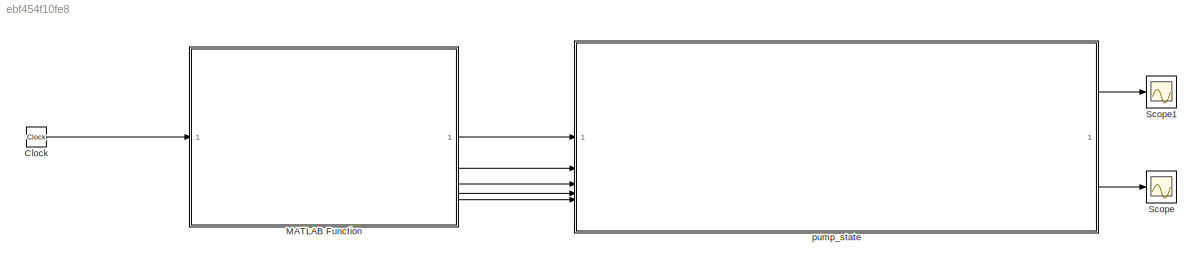
MODEL slx_ebf454f10fe8
KIND model
CONFIG AbsTol = auto
CONFIG EnableMultiTasking = off
CONFIG FixedStep = auto
CONFIG MaxStep = auto
CONFIG MinStep = auto
CONFIG RelTol = 1e-3
CONFIG SampleTimeConstraint = Unconstrained
CONFIG SolverName = VariableStepAuto
CONFIG StartTime = 0.0
CONFIG StopTime = 10.0
BLOCK [Clock] Clock
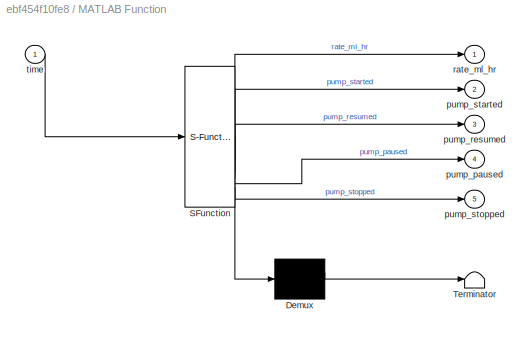
BLOCK [SubSystem] MATLAB Function
  ErrorFcn = Stateflow.Translate.translate
  PermitHierarchicalResolution = ExplicitOnly
  SFBlockType = MATLAB Function
  TreatAsAtomicUnit = on
BLOCK [Demux] MATLAB Function/ Demux 
  Outputs = 1
BLOCK [S-Function] MATLAB Function/ SFunction 
  EnableBusSupport = on
  FunctionName = sf_sfun
  PortCounts = [1 6]
  SFcnIsStateOwnerBlock = off
  SFunctionDeploymentMode = off
  Tag = Stateflow S-Function 2
BLOCK [Terminator] MATLAB Function/ Terminator 
BLOCK [Outport] MATLAB Function/pump_paused
  Port = 4
BLOCK [Outport] MATLAB Function/pump_resumed
  Port = 3
BLOCK [Outport] MATLAB Function/pump_started
  Port = 2
BLOCK [Outport] MATLAB Function/pump_stopped
  Port = 5
BLOCK [Outport] MATLAB Function/rate_ml_hr
BLOCK [Inport] MATLAB Function/time
BLOCK [Scope] Scope
  Floating = off
  NumInputPorts = 1
  ScopeSpecificationString = Simulink.scopes.TimeScopeBlockCfg('CurrentConfiguration', extmgr.ConfigurationSet(extmgr.Configuration('Core','General UI',true),extmgr.Configuration('Core','Source UI',true),extmgr.Configuration('Sources','WiredSimulink',true),extmgr.Configuration('Visuals','Time Domain',true,'SerializedDisplays',{struct('MinYLimReal','-1.00000','MaxYLimReal','1.00000','YLabelReal','','MinYLimMag','0.00000','MaxY...<+1483ch>
BLOCK [Scope] Scope1
  Floating = off
  NumInputPorts = 1
  ScopeSpecificationString = Simulink.scopes.TimeScopeBlockCfg('CurrentConfiguration', extmgr.ConfigurationSet(extmgr.Configuration('Core','General UI',true),extmgr.Configuration('Core','Source UI',true),extmgr.Configuration('Sources','WiredSimulink',true,'DataLoggingVariableName','ScopeData1'),extmgr.Configuration('Visuals','Time Domain',true,'SerializedDisplays',{struct('MinYLimReal','-38.68421','MaxYLimReal','348.15789','Y...<+1507ch>
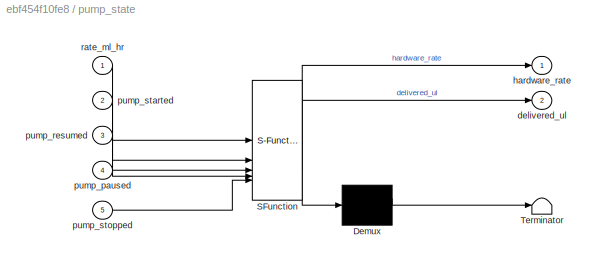
BLOCK [SubSystem] pump_state
  ErrorFcn = Stateflow.Translate.translate
  PermitHierarchicalResolution = ExplicitOnly
  SFBlockType = Chart
  TreatAsAtomicUnit = on
BLOCK [Demux] pump_state/ Demux 
  Outputs = 1
BLOCK [S-Function] pump_state/ SFunction 
  EnableBusSupport = on
  FunctionName = sf_sfun
  PortCounts = [5 3]
  SFcnIsStateOwnerBlock = off
  SFunctionDeploymentMode = off
  Tag = Stateflow S-Function 3
BLOCK [Terminator] pump_state/ Terminator 
BLOCK [Outport] pump_state/delivered_ul
  Port = 2
BLOCK [Outport] pump_state/hardware_rate
BLOCK [Inport] pump_state/pump_paused
  Port = 4
BLOCK [Inport] pump_state/pump_resumed
  Port = 3
BLOCK [Inport] pump_state/pump_started
  Port = 2
BLOCK [Inport] pump_state/pump_stopped
  Port = 5
BLOCK [Inport] pump_state/rate_ml_hr
LINE Clock:1 -> MATLAB Function:1
LINE MATLAB Function:1 -> pump_state:1
LINE MATLAB Function:2 -> pump_state:2
LINE MATLAB Function:3 -> pump_state:3
LINE MATLAB Function:4 -> pump_state:4
LINE MATLAB Function:5 -> pump_state:5
LINE pump_state:1 -> Scope1:1
LINE pump_state:2 -> Scope:1
CHART MATLAB Function states=1 transitions=1
  STATE_LABEL 'eML_blk_kernel()'
  STATE_LABEL 'SCRIPT:\nfunction [rate_ml_hr, pump_started, pump_resumed, pump_paused, pump_stopped] = fcn(time)\n% time is in seconds, like from a Simulink Clock block\n\n  step_size = 0.1;  % one time step every 0.1 seconds\n\n  test_cases = [\n  600, 1, 0, 0, 0;  % t=0.0: stop pulse (reset FSM)\n  600, 1, 0, 0, 0;  % t=0.1: settle\n  600, 1, 0, 0, 0;  % t=0.2: start pulse\n  600, 0, 0, 0, 0;  % t=0.3: settle\n  600, 0, ...<+1205ch>'
CHART pump_state states=8 transitions=12
  STATE_LABEL 'MotorState'
  STATE_LABEL 'Off\nentry:\n    motor_on = false;'
  STATE_LABEL 'On\nentry:\n    motor_on = true;'
  STATE_LABEL '[pump_started || pump_resumed]'
  STATE_LABEL '[pump_paused || pump_stopped]'
  STATE_LABEL 'Off\nentry:\n    motor_on = false;'
  STATE_LABEL 'On\nentry:\n    motor_on = true;'
  STATE_LABEL 'PumpState'
  STATE_LABEL 'Idle'
  STATE_LABEL 'Infusing'
  STATE_LABEL 'PumpError'
  STATE_LABEL 'Paused'
  STATE_LABEL '[pump_resumed]'
  STATE_LABEL '[pump_started && rate_ml_hr > 0]\n{delivered_ul = 0;\nhardware_rate = rate_ml_hr;}'
  STATE_LABEL '[pump_stopped]'
  STATE_LABEL '[pump_stopped]'
  STATE_LABEL '[pump_stopped]'
  STATE_LABEL '[pump_resumed]'
  STATE_LABEL '[pump_paused]'
  STATE_LABEL '[pump_paused || pump_started]'
  STATE_LABEL 'Idle'
  STATE_LABEL 'Infusing'
  STATE_LABEL 'PumpError'
  STATE_LABEL 'Paused'
CHART  states=0 transitions=0
CHART  states=0 transitions=0
